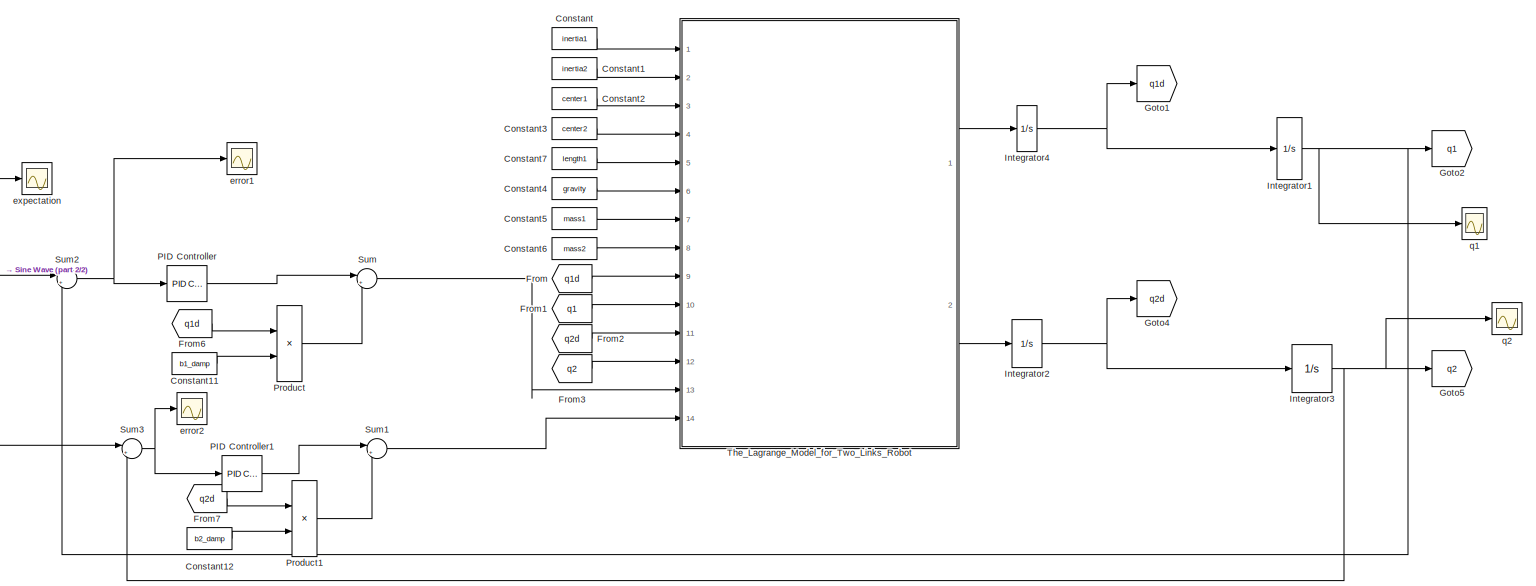
[diagram: root canvas - part 1/2, most of the canvas]
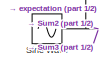
[diagram: root canvas - part 2/2, middle left region]
MODEL slx_73a69d86afde
KIND model
CONFIG AbsTol = auto
CONFIG EnableMultiTasking = off
CONFIG FixedStep = auto
CONFIG MaxStep = auto
CONFIG MinStep = auto
CONFIG RelTol = 1e-3
CONFIG SampleTimeConstraint = Unconstrained
CONFIG SolverName = VariableStepAuto
CONFIG StartTime = 0.0
CONFIG StopTime = 100
BLOCK [Constant] Constant
  Value = inertia1
BLOCK [Constant] Constant1
  Value = inertia2
BLOCK [Constant] Constant11
  Value = b1_damp
BLOCK [Constant] Constant12
  Value = b2_damp
BLOCK [Constant] Constant2
  Value = center1
BLOCK [Constant] Constant3
  Value = center2
BLOCK [Constant] Constant4
  Value = gravity
BLOCK [Constant] Constant5
  Value = mass1
BLOCK [Constant] Constant6
  Value = mass2
BLOCK [Constant] Constant7
  Value = length1
BLOCK [From] From
  GotoTag = q1d
BLOCK [From] From1
  GotoTag = q1
BLOCK [From] From2
  GotoTag = q2d
BLOCK [From] From3
  GotoTag = q2
BLOCK [From] From6
  GotoTag = q1d
BLOCK [From] From7
  GotoTag = q2d
BLOCK [Goto] Goto1
  GotoTag = q1d
BLOCK [Goto] Goto2
  GotoTag = q1
BLOCK [Goto] Goto4
  GotoTag = q2d
BLOCK [Goto] Goto5
  GotoTag = q2
BLOCK [Integrator] Integrator1
  InitialCondition = 1
  Ports = [1, 1]
BLOCK [Integrator] Integrator2
  Ports = [1, 1]
BLOCK [Integrator] Integrator3
  InitialCondition = 1
  Ports = [1, 1]
BLOCK [Integrator] Integrator4
  Ports = [1, 1]
BLOCK [Reference] PID Controller  REF=slpidlib/PID Controller
  Ports = [1, 1]
  SourceBlock = slpidlib/PID Controller
  SourceProductBaseCode = SL
  SourceType = PID 1dof
BLOCK [Reference] PID Controller1  REF=slpidlib/PID Controller
  Ports = [1, 1]
  SourceBlock = slpidlib/PID Controller
  SourceProductBaseCode = SL
  SourceType = PID 1dof
BLOCK [Product] Product
  Ports = [2, 1]
BLOCK [Product] Product1
  Ports = [2, 1]
BLOCK [Sin] Sine Wave
  Ports = [0, 1]
  SampleTime = 0
BLOCK [Sum] Sum
  Inputs = |+-
  Ports = [2, 1]
BLOCK [Sum] Sum1
  Inputs = |+-
  Ports = [2, 1]
BLOCK [Sum] Sum2
  Inputs = |+-
  Ports = [2, 1]
BLOCK [Sum] Sum3
  Inputs = |+-
  Ports = [2, 1]
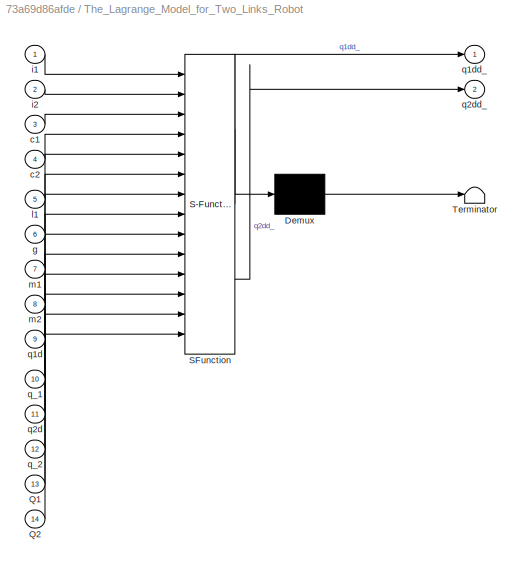
BLOCK [SubSystem] The_Lagrange_Model_for_Two_Links_Robot
  ErrorFcn = Stateflow.Translate.translate
  PermitHierarchicalResolution = ExplicitOnly
  Ports = [14, 2]
  RequestExecContextInheritance = off
  SFBlockType = MATLAB Function
  TreatAsAtomicUnit = on
BLOCK [Demux] The_Lagrange_Model_for_Two_Links_Robot/ Demux 
  Outputs = 1
  Ports = [1, 1]
BLOCK [S-Function] The_Lagrange_Model_for_Two_Links_Robot/ SFunction 
  EnableBusSupport = on
  FunctionName = sf_sfun
  PortCounts = [14 3]
  Ports = [14, 3]
  SFcnIsStateOwnerBlock = off
  SFunctionDeploymentMode = off
  Tag = Stateflow S-Function 2
BLOCK [Terminator] The_Lagrange_Model_for_Two_Links_Robot/ Terminator 
BLOCK [Inport] The_Lagrange_Model_for_Two_Links_Robot/Q1
  Port = 13
BLOCK [Inport] The_Lagrange_Model_for_Two_Links_Robot/Q2
  Port = 14
BLOCK [Inport] The_Lagrange_Model_for_Two_Links_Robot/c1
  Port = 3
BLOCK [Inport] The_Lagrange_Model_for_Two_Links_Robot/c2
  Port = 4
BLOCK [Inport] The_Lagrange_Model_for_Two_Links_Robot/g
  Port = 6
BLOCK [Inport] The_Lagrange_Model_for_Two_Links_Robot/i1
BLOCK [Inport] The_Lagrange_Model_for_Two_Links_Robot/i2
  Port = 2
BLOCK [Inport] The_Lagrange_Model_for_Two_Links_Robot/l1
  Port = 5
BLOCK [Inport] The_Lagrange_Model_for_Two_Links_Robot/m1
  Port = 7
BLOCK [Inport] The_Lagrange_Model_for_Two_Links_Robot/m2
  Port = 8
BLOCK [Inport] The_Lagrange_Model_for_Two_Links_Robot/q1d
  Port = 9
BLOCK [Outport] The_Lagrange_Model_for_Two_Links_Robot/q1dd_
BLOCK [Inport] The_Lagrange_Model_for_Two_Links_Robot/q2d
  Port = 11
BLOCK [Outport] The_Lagrange_Model_for_Two_Links_Robot/q2dd_
  Port = 2
BLOCK [Inport] The_Lagrange_Model_for_Two_Links_Robot/q_1
  Port = 10
BLOCK [Inport] The_Lagrange_Model_for_Two_Links_Robot/q_2
  Port = 12
BLOCK [Scope] error1
  Floating = off
  NumInputPorts = 1
  Ports = [1]
  ScopeSpecificationString = Simulink.scopes.TimeScopeBlockCfg('CurrentConfiguration', extmgr.ConfigurationSet(extmgr.Configuration('Core','General UI',true),extmgr.Configuration('Core','Source UI',true),extmgr.Configuration('Sources','WiredSimulink',true,'DataLoggingVariableName','ScopeData1'),extmgr.Configuration('Visuals','Time Domain',true,'SerializedDisplays',{struct('MinYLimReal','-1.42801','MaxYLimReal','0.89138','YLab...<+1418ch>
BLOCK [Scope] error2
  Floating = off
  NumInputPorts = 1
  Ports = [1]
  ScopeSpecificationString = Simulink.scopes.TimeScopeBlockCfg('CurrentConfiguration', extmgr.ConfigurationSet(extmgr.Configuration('Core','General UI',true),extmgr.Configuration('Core','Source UI',true),extmgr.Configuration('Sources','WiredSimulink',true,'DataLoggingVariableName','ScopeData2'),extmgr.Configuration('Visuals','Time Domain',true,'SerializedDisplays',{struct('MinYLimReal','-1.1858','MaxYLimReal','0.6722','YLabel...<+1418ch>
BLOCK [Scope] expectation
  Floating = off
  NumInputPorts = 1
  Ports = [1]
  ScopeSpecificationString = Simulink.scopes.TimeScopeBlockCfg('CurrentConfiguration', extmgr.ConfigurationSet(extmgr.Configuration('Core','General UI',true),extmgr.Configuration('Core','Source UI',true),extmgr.Configuration('Sources','WiredSimulink',true,'DataLoggingVariableName','ScopeData1'),extmgr.Configuration('Visuals','Time Domain',true,'SerializedDisplays',{struct('MinYLimReal','-1.25','MaxYLimReal','1.25','YLabelReal...<+1405ch>
BLOCK [Scope] q1
  Floating = off
  NumInputPorts = 1
  Ports = [1]
  ScopeSpecificationString = Simulink.scopes.TimeScopeBlockCfg('CurrentConfiguration', extmgr.ConfigurationSet(extmgr.Configuration('Core','General UI',true),extmgr.Configuration('Core','Source UI',true),extmgr.Configuration('Sources','WiredSimulink',true,'DataLoggingVariableName','ScopeData1'),extmgr.Configuration('Visuals','Time Domain',true,'SerializedDisplays',{struct('MinYLimReal','-1.30605','MaxYLimReal','1.47649','YLab...<+1425ch>
BLOCK [Scope] q2
  Floating = off
  NumInputPorts = 1
  Ports = [1]
  ScopeSpecificationString = Simulink.scopes.TimeScopeBlockCfg('CurrentConfiguration', extmgr.ConfigurationSet(extmgr.Configuration('Core','General UI',true),extmgr.Configuration('Core','Source UI',true),extmgr.Configuration('Sources','WiredSimulink',true),extmgr.Configuration('Visuals','Time Domain',true,'SerializedDisplays',{struct('MinYLimReal','-1.26289','MaxYLimReal','1.2637','YLabelReal','','MinYLimMag','0.00000','MaxYL...<+1456ch>
LINE Constant11:1 -> Product:2
LINE Constant12:1 -> Product1:2
LINE Constant1:1 -> The_Lagrange_Model_for_Two_Links_Robot:2
LINE Constant2:1 -> The_Lagrange_Model_for_Two_Links_Robot:3
LINE Constant3:1 -> The_Lagrange_Model_for_Two_Links_Robot:4
LINE Constant4:1 -> The_Lagrange_Model_for_Two_Links_Robot:6
LINE Constant5:1 -> The_Lagrange_Model_for_Two_Links_Robot:7
LINE Constant6:1 -> The_Lagrange_Model_for_Two_Links_Robot:8
LINE Constant7:1 -> The_Lagrange_Model_for_Two_Links_Robot:5
LINE Constant:1 -> The_Lagrange_Model_for_Two_Links_Robot:1
LINE From1:1 -> The_Lagrange_Model_for_Two_Links_Robot:10
LINE From2:1 -> The_Lagrange_Model_for_Two_Links_Robot:11
LINE From3:1 -> The_Lagrange_Model_for_Two_Links_Robot:12
LINE From6:1 -> Product:1
LINE From7:1 -> Product1:1
LINE From:1 -> The_Lagrange_Model_for_Two_Links_Robot:9
NET Integrator1:1 -> Goto2:1, Sum2:2, q1:1
NET Integrator2:1 -> Goto4:1, Integrator3:1
NET Integrator3:1 -> Goto5:1, Sum3:2, q2:1
NET Integrator4:1 -> Goto1:1, Integrator1:1
LINE PID Controller1:1 -> Sum1:1
LINE PID Controller:1 -> Sum:1
LINE Product1:1 -> Sum1:2
LINE Product:1 -> Sum:2
NET Sine Wave:1 -> Sum2:1, Sum3:1, expectation:1
LINE Sum1:1 -> The_Lagrange_Model_for_Two_Links_Robot:14
NET Sum2:1 -> PID Controller:1, error1:1
NET Sum3:1 -> PID Controller1:1, error2:1
LINE Sum:1 -> The_Lagrange_Model_for_Two_Links_Robot:13
LINE The_Lagrange_Model_for_Two_Links_Robot:1 -> Integrator4:1
LINE The_Lagrange_Model_for_Two_Links_Robot:2 -> Integrator2:1
note: NET lines group one-source signal fan-out (src -> all destinations, sorted); 1:1 wires keep LINE
CHART The_Lagrange_Model_for_Two_Links_Robot states=1 transitions=1
  STATE_LABEL 'eML_blk_kernel()'
  STATE_LABEL 'SCRIPT:\nfunction [q1dd_,q2dd_] = The_Lagrange_Model_for_Two_Links_Robot(i1,i2,c1,c2,l1,g,m1,m2,q1d,q_1,q2d,q_2,Q1,Q2)\n%#codegen\n\n%    This function was generated by the Symbolic Math Toolbox version 9.1.\n%    30-Nov-2022 10:42:33\n\net1 = 1.0./(i1.*i2+i2.*l1.^2.*m2+c2.^2.*l1.^2.*m2.^2+c1.^2.*i2.*m1+c2.^2.*i1.*m2+c1.^2.*c2.^2.*m1.*m2-c2.^2.*l1.^2.*m2.^2.*cos(q_2).^2);\net2 = Q1.*i2-Q2.*i2+Q1.*c2.^2.*m...<+1616ch>'
CHART  states=0 transitions=0
